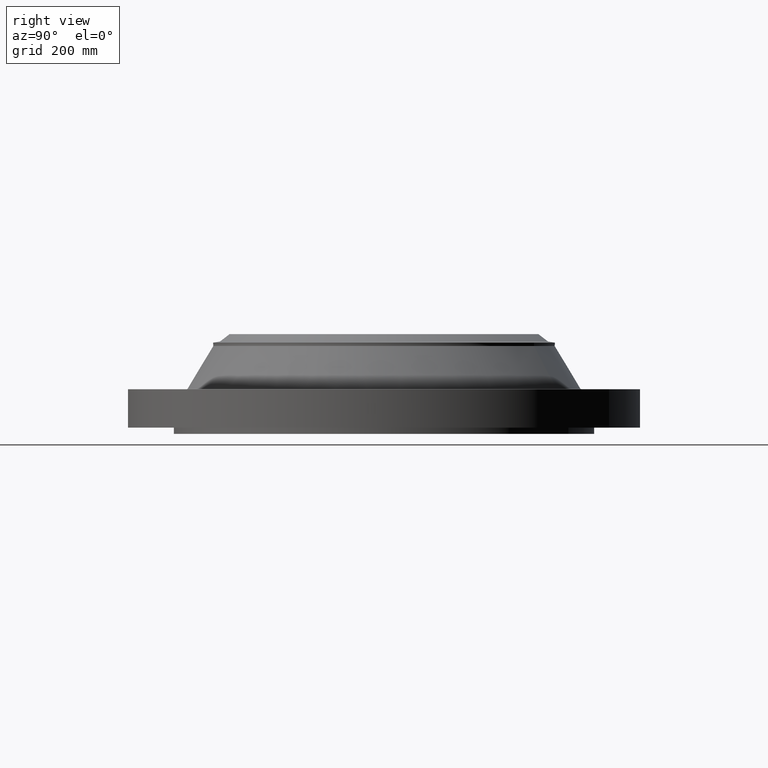
[diagram: clean part render]
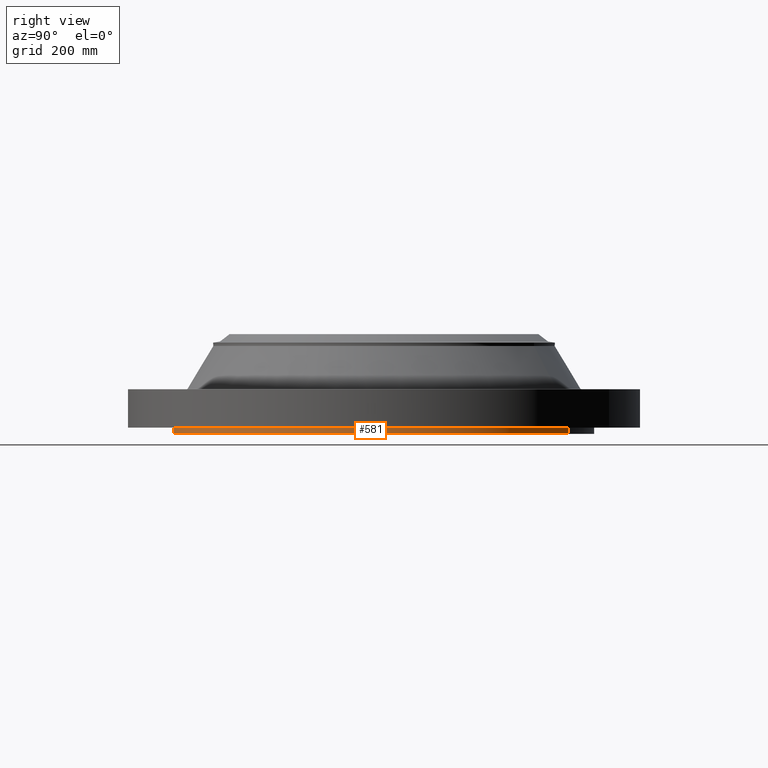
[diagram: same view with one face highlighted and labeled with its STEP entity id]
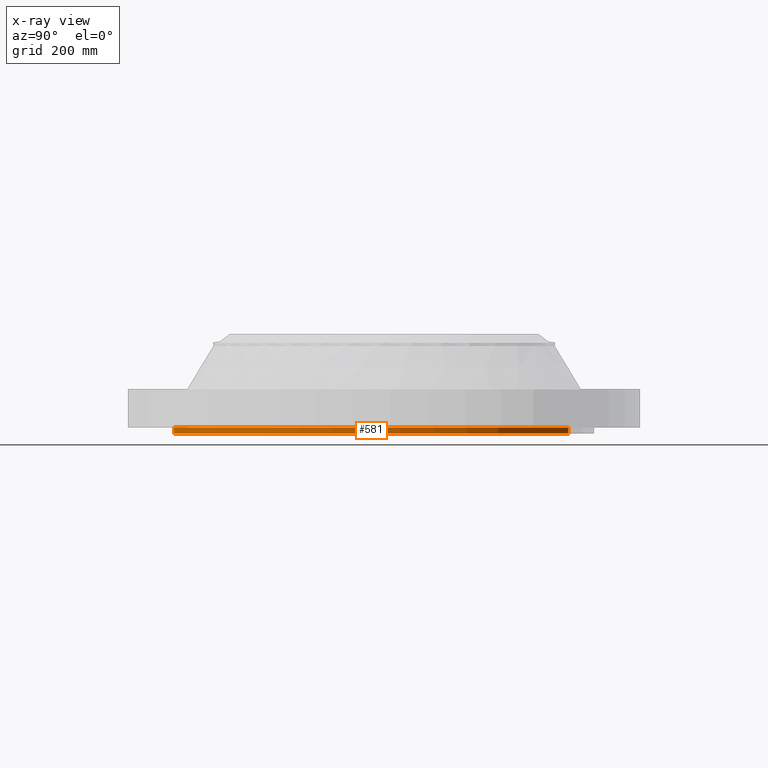
[diagram: x-ray of the same camera — body ghosted, the highlighted face saturated]
A machine part, right view. The second image highlights one B-rep face of the part: STEP entity #581.
The next image is the same camera in x-ray: the body ghosted, the highlighted face saturated — about 0% of this face is hidden behind the body in this view.
In plain terms, the highlighted cylindrical surface (partial cylindrical patch) has radius 374.65 mm, axis along (0, 0, -1).
Its self-contained STEP definition (entity closure, byte-faithful):
#528=AXIS2_PLACEMENT_3D('Cylinder Axis2P3D',#525,#526,#527) ;
#567=AXIS2_PLACEMENT_3D('Circle Axis2P3D',#565,#566,$) ;
#572=AXIS2_PLACEMENT_3D('Circle Axis2P3D',#570,#571,$) ;
#525=CARTESIAN_POINT('Axis2P3D Location',(0.,0.,3.06100000001)) ;
#534=CARTESIAN_POINT('Vertex',(-7.07152669444,-12.9443427879,-0.438000000002)) ;
#536=CARTESIAN_POINT('Vertex',(7.07152669444,12.9443427879,-0.438000000002)) ;
#539=CARTESIAN_POINT('Line Origine',(-7.07152669444,-12.9443427879,-0.219000000001)) ;
#543=CARTESIAN_POINT('Vertex',(-7.07152669444,-12.9443427879,1.67844740731E-015)) ;
#550=CARTESIAN_POINT('Vertex',(7.07152669444,12.9443427879,1.67844740731E-015)) ;
#553=CARTESIAN_POINT('Line Origine',(7.07152669444,12.9443427879,-0.219000000001)) ;
#565=CARTESIAN_POINT('Axis2P3D Location',(0.,0.,-0.438000000002)) ;
#570=CARTESIAN_POINT('Axis2P3D Location',(0.,0.,1.67844740731E-015)) ;
#526=DIRECTION('Axis2P3D Direction',(0.,0.,-0.0393700787402)) ;
#527=DIRECTION('Axis2P3D XDirection',(0.0188750212049,0.0345504945626,0.)) ;
#540=DIRECTION('Vector Direction',(0.,0.,-0.0393700787402)) ;
#554=DIRECTION('Vector Direction',(0.,0.,-0.0393700787402)) ;
#566=DIRECTION('Axis2P3D Direction',(0.,0.,-0.0393700787402)) ;
#571=DIRECTION('Axis2P3D Direction',(0.,0.,-0.0393700787402)) ;
#541=VECTOR('Line Direction',#540,0.0393700787402) ;
#555=VECTOR('Line Direction',#554,0.0393700787402) ;
#576=ORIENTED_EDGE('',*,*,#569,.F.) ;
#577=ORIENTED_EDGE('',*,*,#557,.T.) ;
#578=ORIENTED_EDGE('',*,*,#574,.T.) ;
#579=ORIENTED_EDGE('',*,*,#545,.F.) ;
#581=ADVANCED_FACE('PartBody',(#580),#529,.T.) ;
#568=CIRCLE('generated circle',#567,14.7500000001) ;
#573=CIRCLE('generated circle',#572,14.7500000001) ;
#529=CYLINDRICAL_SURFACE('generated cylinder',#528,14.7500000001) ;
#545=EDGE_CURVE('',#535,#544,#542,.F.) ;
#557=EDGE_CURVE('',#537,#551,#556,.F.) ;
#569=EDGE_CURVE('',#537,#535,#568,.T.) ;
#574=EDGE_CURVE('',#551,#544,#573,.T.) ;
#575=EDGE_LOOP('',(#576,#577,#578,#579)) ;
#580=FACE_OUTER_BOUND('',#575,.T.) ;
#542=LINE('Line',#539,#541) ;
#556=LINE('Line',#553,#555) ;
#535=VERTEX_POINT('',#534) ;
#537=VERTEX_POINT('',#536) ;
#544=VERTEX_POINT('',#543) ;
#551=VERTEX_POINT('',#550) ;